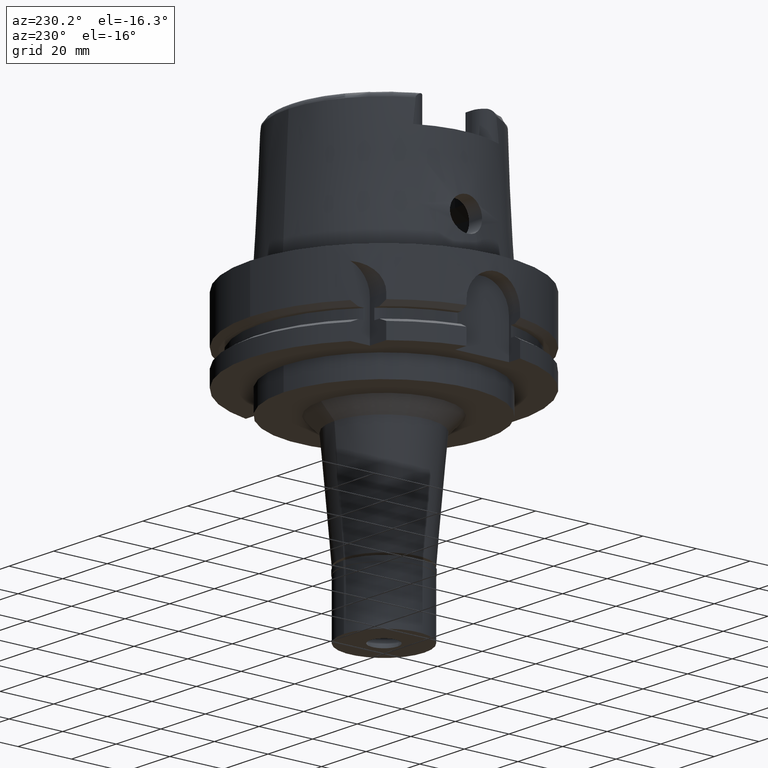
[diagram: clean part render]
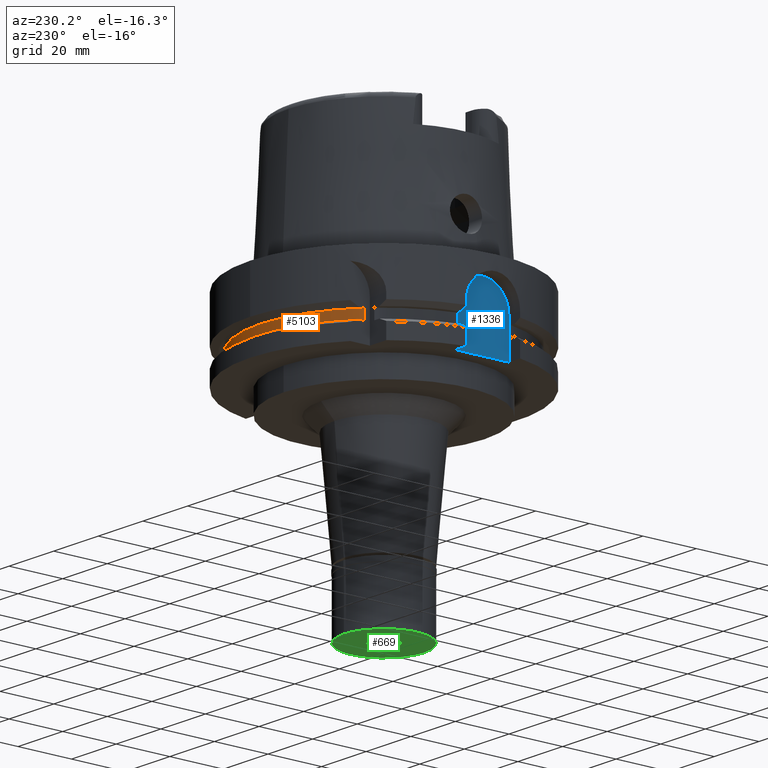
[diagram: same view with three faces highlighted in distinct colors, each labeled with its STEP entity id]
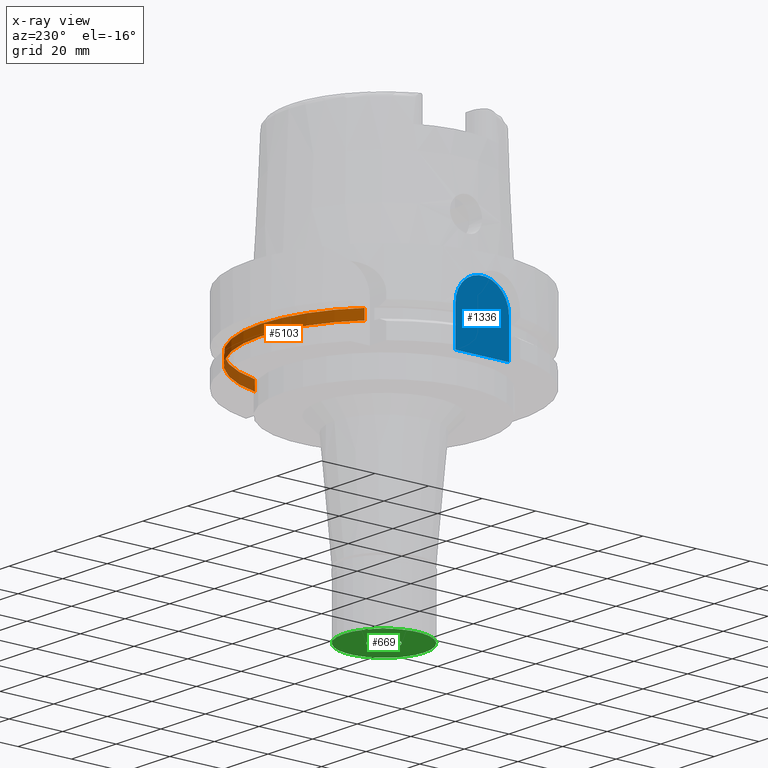
[diagram: x-ray of the same camera — body ghosted, the three highlighted faces saturated]
A machine part, auxiliary view with three faces highlighted in distinct colors.
The next image is the same camera in x-ray (body ghosted, the three faces saturated) — at least one of them is partly hidden behind the body in this view.
Their STEP definitions:

[orange] entity #5103 — the highlighted cylindrical surface (partial cylindrical patch) has radius 46 mm, axis along (0, 0, 1).
#41 = VERTEX_POINT ( 'NONE', #4285 ) ;
#72 = CARTESIAN_POINT ( 'NONE',  ( -31.50000000000000000, 33.52238058372000040, -18.12500000000000000 ) ) ;
#583 = CARTESIAN_POINT ( 'NONE',  ( 0.0000000000000000000, 0.0000000000000000000, -21.87500000000000000 ) ) ;
#709 = CARTESIAN_POINT ( 'NONE',  ( -31.50000000000000000, 33.52238058372000040, -21.87500000000000000 ) ) ;
#720 = DIRECTION ( 'NONE',  ( 0.0000000000000000000, 0.0000000000000000000, 1.000000000000000000 ) ) ;
#978 = AXIS2_PLACEMENT_3D ( 'NONE', #583, #5304, #3955 ) ;
#1170 = ORIENTED_EDGE ( 'NONE', *, *, #4210, .T. ) ;
#1484 = DIRECTION ( 'NONE',  ( 0.0000000000000000000, 0.0000000000000000000, -1.000000000000000000 ) ) ;
#1504 = AXIS2_PLACEMENT_3D ( 'NONE', #5409, #1567, #4531 ) ;
#1557 = VERTEX_POINT ( 'NONE', #709 ) ;
#1567 = DIRECTION ( 'NONE',  ( 0.0000000000000000000, 0.0000000000000000000, -1.000000000000000000 ) ) ;
#1601 = VECTOR ( 'NONE', #5493, 1000.000000000000000 ) ;
#2019 = CARTESIAN_POINT ( 'NONE',  ( 0.0000000000000000000, 0.0000000000000000000, -105.7150000000000034 ) ) ;
#2557 = CARTESIAN_POINT ( 'NONE',  ( 44.66542286825000474, 11.00000000000000000, -21.87500000000000000 ) ) ;
#2564 = CARTESIAN_POINT ( 'NONE',  ( 44.66542286825000474, 11.00000000000000000, -21.87500000000000000 ) ) ;
#2689 = VECTOR ( 'NONE', #1484, 1000.000000000000000 ) ;
#3021 = EDGE_LOOP ( 'NONE', ( #3415, #1170, #4608, #3808 ) ) ;
#3415 = ORIENTED_EDGE ( 'NONE', *, *, #3511, .F. ) ;
#3416 = CIRCLE ( 'NONE', #978, 46.00000000000000000 ) ;
#3439 = VERTEX_POINT ( 'NONE', #72 ) ;
#3511 = EDGE_CURVE ( 'NONE', #3439, #1557, #4424, .T. ) ;
#3517 = EDGE_CURVE ( 'NONE', #4940, #1557, #3416, .T. ) ;
#3741 = LINE ( 'NONE', #2557, #1601 ) ;
#3798 = FACE_OUTER_BOUND ( 'NONE', #3021, .T. ) ;
#3808 = ORIENTED_EDGE ( 'NONE', *, *, #3517, .T. ) ;
#3955 = DIRECTION ( 'NONE',  ( 0.9709874536577099979, 0.2391304347826024856, 0.0000000000000000000 ) ) ;
#4162 = DIRECTION ( 'NONE',  ( 0.0000000000000000000, 1.000000000000000000, 0.0000000000000000000 ) ) ;
#4210 = EDGE_CURVE ( 'NONE', #3439, #41, #4477, .T. ) ;
#4285 = CARTESIAN_POINT ( 'NONE',  ( 44.66542286825000474, 11.00000000000000000, -18.12500000000000000 ) ) ;
#4424 = LINE ( 'NONE', #4819, #2689 ) ;
#4477 = CIRCLE ( 'NONE', #1504, 46.00000000000000000 ) ;
#4531 = DIRECTION ( 'NONE',  ( 0.0000000000000000000, 1.000000000000000000, 0.0000000000000000000 ) ) ;
#4608 = ORIENTED_EDGE ( 'NONE', *, *, #5170, .F. ) ;
#4756 = AXIS2_PLACEMENT_3D ( 'NONE', #2019, #720, #4162 ) ;
#4819 = CARTESIAN_POINT ( 'NONE',  ( -31.50000000000000000, 33.52238058372000040, -18.12500000000000000 ) ) ;
#4940 = VERTEX_POINT ( 'NONE', #2564 ) ;
#5103 = ADVANCED_FACE ( 'NONE', ( #3798 ), #5545, .T. ) ;
#5170 = EDGE_CURVE ( 'NONE', #4940, #41, #3741, .T. ) ;
#5304 = DIRECTION ( 'NONE',  ( 0.0000000000000000000, 0.0000000000000000000, 1.000000000000000000 ) ) ;
#5409 = CARTESIAN_POINT ( 'NONE',  ( 0.0000000000000000000, 0.0000000000000000000, -18.12500000000000000 ) ) ;
#5493 = DIRECTION ( 'NONE',  ( 0.0000000000000000000, 0.0000000000000000000, 1.000000000000000000 ) ) ;
#5545 = CYLINDRICAL_SURFACE ( 'NONE', #4756, 46.00000000000000000 ) ;

[blue] entity #1336 — the highlighted planar face has unit normal (1, 0, 0).
#66 = EDGE_LOOP ( 'NONE', ( #5413, #2145, #2760, #3962 ) ) ;
#286 = CARTESIAN_POINT ( 'NONE',  ( -44.00000000000000000, 0.0000000000000000000, -15.00000000000000000 ) ) ;
#562 = CARTESIAN_POINT ( 'NONE',  ( -44.00000000000000000, 10.00000000000000000, -15.00000000000000000 ) ) ;
#716 = DIRECTION ( 'NONE',  ( 1.000000000000000000, 0.0000000000000000000, 0.0000000000000000000 ) ) ;
#726 = DIRECTION ( 'NONE',  ( 0.0000000000000000000, 0.0000000000000000000, 1.000000000000000000 ) ) ;
#756 = DIRECTION ( 'NONE',  ( 0.0000000000000000000, 1.000000000000000000, 0.0000000000000000000 ) ) ;
#772 = DIRECTION ( 'NONE',  ( 0.0000000000000000000, 0.0000000000000000000, 1.000000000000000000 ) ) ;
#1146 = VERTEX_POINT ( 'NONE', #1645 ) ;
#1175 = EDGE_CURVE ( 'NONE', #1146, #1837, #3298, .T. ) ;
#1336 = ADVANCED_FACE ( 'NONE', ( #1364 ), #3093, .F. ) ;
#1364 = FACE_OUTER_BOUND ( 'NONE', #66, .T. ) ;
#1412 = LINE ( 'NONE', #562, #4835 ) ;
#1645 = CARTESIAN_POINT ( 'NONE',  ( -44.00000000000000000, 10.00000000000000000, -15.00000000000000000 ) ) ;
#1837 = VERTEX_POINT ( 'NONE', #4800 ) ;
#2026 = CARTESIAN_POINT ( 'NONE',  ( -44.00000000000000000, -10.00000000000000000, -29.00000000000000000 ) ) ;
#2145 = ORIENTED_EDGE ( 'NONE', *, *, #1175, .F. ) ;
#2264 = DIRECTION ( 'NONE',  ( 0.0000000000000000000, 0.0000000000000000000, -1.000000000000000000 ) ) ;
#2703 = VERTEX_POINT ( 'NONE', #4942 ) ;
#2760 = ORIENTED_EDGE ( 'NONE', *, *, #3199, .T. ) ;
#3093 = PLANE ( 'NONE',  #5189 ) ;
#3199 = EDGE_CURVE ( 'NONE', #1146, #4969, #1412, .T. ) ;
#3298 = CIRCLE ( 'NONE', #3648, 10.00000000000000000 ) ;
#3648 = AXIS2_PLACEMENT_3D ( 'NONE', #286, #716, #772 ) ;
#3720 = LINE ( 'NONE', #4952, #5379 ) ;
#3862 = LINE ( 'NONE', #2026, #5383 ) ;
#3880 = CARTESIAN_POINT ( 'NONE',  ( -44.00000000000000000, 0.0000000000000000000, 0.0000000000000000000 ) ) ;
#3962 = ORIENTED_EDGE ( 'NONE', *, *, #4851, .F. ) ;
#4194 = EDGE_CURVE ( 'NONE', #2703, #1837, #3720, .T. ) ;
#4269 = DIRECTION ( 'NONE',  ( 1.000000000000000000, 0.0000000000000000000, 0.0000000000000000000 ) ) ;
#4467 = CARTESIAN_POINT ( 'NONE',  ( -44.00000000000000000, 10.00000000000000000, -29.00000000000000000 ) ) ;
#4748 = DIRECTION ( 'NONE',  ( 0.0000000000000000000, 1.000000000000000000, 0.0000000000000000000 ) ) ;
#4800 = CARTESIAN_POINT ( 'NONE',  ( -44.00000000000000000, -10.00000000000000000, -15.00000000000000000 ) ) ;
#4835 = VECTOR ( 'NONE', #2264, 1000.000000000000000 ) ;
#4851 = EDGE_CURVE ( 'NONE', #2703, #4969, #3862, .T. ) ;
#4942 = CARTESIAN_POINT ( 'NONE',  ( -44.00000000000000000, -10.00000000000000000, -29.00000000000000000 ) ) ;
#4952 = CARTESIAN_POINT ( 'NONE',  ( -44.00000000000000000, -10.00000000000000000, -29.00000000000000000 ) ) ;
#4969 = VERTEX_POINT ( 'NONE', #4467 ) ;
#5189 = AXIS2_PLACEMENT_3D ( 'NONE', #3880, #4269, #4748 ) ;
#5379 = VECTOR ( 'NONE', #726, 1000.000000000000000 ) ;
#5383 = VECTOR ( 'NONE', #756, 1000.000000000000000 ) ;
#5413 = ORIENTED_EDGE ( 'NONE', *, *, #4194, .T. ) ;

[green] entity #669 — the highlighted planar face has unit normal (0, 0, -1).
#21 = DIRECTION ( 'NONE',  ( 0.0000000000000000000, -1.000000000000000000, 0.0000000000000000000 ) ) ;
#508 = EDGE_CURVE ( 'NONE', #2835, #4724, #2680, .T. ) ;
#571 = DIRECTION ( 'NONE',  ( 0.0000000000000000000, 0.0000000000000000000, -1.000000000000000000 ) ) ;
#627 = CARTESIAN_POINT ( 'NONE',  ( 0.0000000000000000000, 0.0000000000000000000, -22.00000000000000000 ) ) ;
#669 = ADVANCED_FACE ( 'NONE', ( #2252, #3601 ), #1449, .T. ) ;
#793 = CIRCLE ( 'NONE', #4390, 15.00000000000000000 ) ;
#972 = AXIS2_PLACEMENT_3D ( 'NONE', #3966, #4887, #3123 ) ;
#1056 = ORIENTED_EDGE ( 'NONE', *, *, #508, .F. ) ;
#1400 = DIRECTION ( 'NONE',  ( 0.0000000000000000000, -1.000000000000000000, 0.0000000000000000000 ) ) ;
#1449 = PLANE ( 'NONE',  #972 ) ;
#1618 = CARTESIAN_POINT ( 'NONE',  ( 0.0000000000000000000, 5.100000000001000622, -22.00000000000000000 ) ) ;
#1768 = ORIENTED_EDGE ( 'NONE', *, *, #4447, .F. ) ;
#1769 = AXIS2_PLACEMENT_3D ( 'NONE', #5290, #1896, #5399 ) ;
#1780 = AXIS2_PLACEMENT_3D ( 'NONE', #3426, #3005, #21 ) ;
#1806 = CARTESIAN_POINT ( 'NONE',  ( 0.0000000000000000000, -5.100000000001000622, -22.00000000000000000 ) ) ;
#1896 = DIRECTION ( 'NONE',  ( 0.0000000000000000000, 0.0000000000000000000, 1.000000000000000000 ) ) ;
#1966 = EDGE_LOOP ( 'NONE', ( #1056, #1768 ) ) ;
#2252 = FACE_OUTER_BOUND ( 'NONE', #2257, .T. ) ;
#2257 = EDGE_LOOP ( 'NONE', ( #2352, #2420 ) ) ;
#2352 = ORIENTED_EDGE ( 'NONE', *, *, #2687, .F. ) ;
#2420 = ORIENTED_EDGE ( 'NONE', *, *, #4033, .F. ) ;
#2672 = CIRCLE ( 'NONE', #1769, 15.00000000000000000 ) ;
#2680 = CIRCLE ( 'NONE', #3770, 5.100000000001000622 ) ;
#2687 = EDGE_CURVE ( 'NONE', #4189, #5211, #2672, .T. ) ;
#2835 = VERTEX_POINT ( 'NONE', #1618 ) ;
#3005 = DIRECTION ( 'NONE',  ( 0.0000000000000000000, 0.0000000000000000000, -1.000000000000000000 ) ) ;
#3123 = DIRECTION ( 'NONE',  ( 0.0000000000000000000, -1.000000000000000000, 0.0000000000000000000 ) ) ;
#3187 = DIRECTION ( 'NONE',  ( 0.0000000000000000000, 0.0000000000000000000, 1.000000000000000000 ) ) ;
#3211 = CARTESIAN_POINT ( 'NONE',  ( 0.0000000000000000000, 15.00000000000000000, -22.00000000000000000 ) ) ;
#3426 = CARTESIAN_POINT ( 'NONE',  ( 0.0000000000000000000, 0.0000000000000000000, -22.00000000000000000 ) ) ;
#3601 = FACE_BOUND ( 'NONE', #1966, .T. ) ;
#3608 = CARTESIAN_POINT ( 'NONE',  ( 0.0000000000000000000, 0.0000000000000000000, -22.00000000000000000 ) ) ;
#3645 = DIRECTION ( 'NONE',  ( 0.0000000000000000000, 1.000000000000000000, 0.0000000000000000000 ) ) ;
#3770 = AXIS2_PLACEMENT_3D ( 'NONE', #627, #571, #3645 ) ;
#3966 = CARTESIAN_POINT ( 'NONE',  ( 0.0000000000000000000, 0.0000000000000000000, -22.00000000000000000 ) ) ;
#4033 = EDGE_CURVE ( 'NONE', #5211, #4189, #793, .T. ) ;
#4189 = VERTEX_POINT ( 'NONE', #3211 ) ;
#4302 = CIRCLE ( 'NONE', #1780, 5.100000000001000622 ) ;
#4390 = AXIS2_PLACEMENT_3D ( 'NONE', #3608, #3187, #1400 ) ;
#4447 = EDGE_CURVE ( 'NONE', #4724, #2835, #4302, .T. ) ;
#4724 = VERTEX_POINT ( 'NONE', #1806 ) ;
#4887 = DIRECTION ( 'NONE',  ( 0.0000000000000000000, 0.0000000000000000000, -1.000000000000000000 ) ) ;
#5041 = CARTESIAN_POINT ( 'NONE',  ( 0.0000000000000000000, -15.00000000000000000, -22.00000000000000000 ) ) ;
#5211 = VERTEX_POINT ( 'NONE', #5041 ) ;
#5290 = CARTESIAN_POINT ( 'NONE',  ( 0.0000000000000000000, 0.0000000000000000000, -22.00000000000000000 ) ) ;
#5399 = DIRECTION ( 'NONE',  ( 0.0000000000000000000, 1.000000000000000000, 0.0000000000000000000 ) ) ;